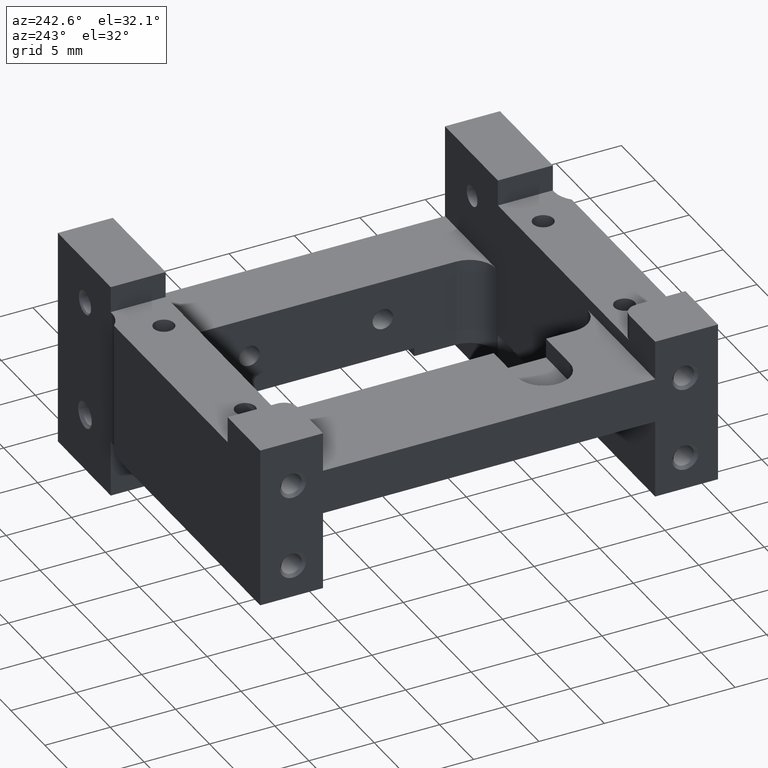
[diagram: clean part render]
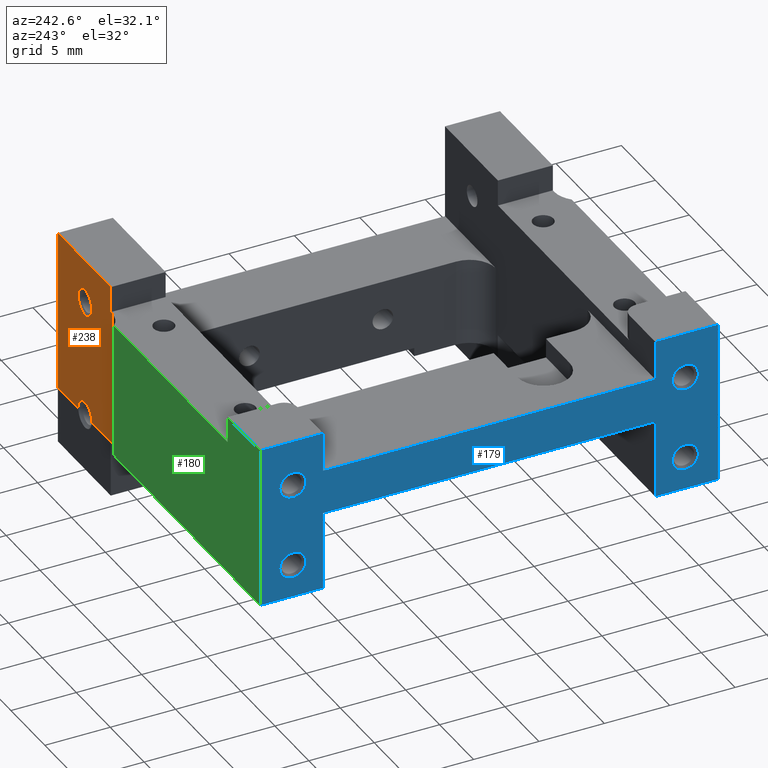
[diagram: same view with three faces highlighted in distinct colors, each labeled with its STEP entity id]
A machine part, auxiliary view with three faces highlighted in distinct colors.
Their STEP definitions:

[orange] entity #238 — the highlighted planar face has unit normal (0, 1, 0).
#150=FACE_BOUND('',#644,.F.);
#238=ADVANCED_FACE('',(#150,#432),#1756,.T.);
#432=FACE_OUTER_BOUND('',#645,.F.);
#644=EDGE_LOOP('',(#1180,#1181));
#645=EDGE_LOOP('',(#1182,#1183,#1184,#1185,#1186,#1187,#1188,#1189,#1190,
#1191,#1192));
#1180=ORIENTED_EDGE('',*,*,#2591,.F.);
#1181=ORIENTED_EDGE('',*,*,#2592,.F.);
#1182=ORIENTED_EDGE('',*,*,#2593,.T.);
#1183=ORIENTED_EDGE('',*,*,#2549,.T.);
#1184=ORIENTED_EDGE('',*,*,#2425,.F.);
#1185=ORIENTED_EDGE('',*,*,#2589,.F.);
#1186=ORIENTED_EDGE('',*,*,#2590,.F.);
#1187=ORIENTED_EDGE('',*,*,#2588,.F.);
#1188=ORIENTED_EDGE('',*,*,#2415,.F.);
#1189=ORIENTED_EDGE('',*,*,#2422,.F.);
#1190=ORIENTED_EDGE('',*,*,#2414,.F.);
#1191=ORIENTED_EDGE('',*,*,#2412,.T.);
#1192=ORIENTED_EDGE('',*,*,#2413,.T.);
#1756=PLANE('',#3576);
#1843=LINE('',#5117,#2113);
#1844=LINE('',#5118,#2114);
#1845=LINE('',#5119,#2115);
#1846=LINE('',#5120,#2116);
#1853=LINE('',#5127,#2123);
#1856=LINE('',#5130,#2126);
#1934=LINE('',#5254,#2204);
#1949=LINE('',#5298,#2219);
#2113=VECTOR('',#3808,1.99999976788385);
#2114=VECTOR('',#3809,0.200000556244207);
#2115=VECTOR('',#3810,7.79999944375578);
#2116=VECTOR('',#3811,3.00130552789108);
#2123=VECTOR('',#3818,12.4000000705615);
#2126=VECTOR('',#3821,2.80130580836718);
#2204=VECTOR('',#3991,0.199999738716436);
#2219=VECTOR('',#4064,10.4000002469794);
#2412=EDGE_CURVE('',#3194,#3193,#1843,.T.);
#2413=EDGE_CURVE('',#3193,#3192,#1844,.T.);
#2414=EDGE_CURVE('',#3194,#3191,#1845,.T.);
#2415=EDGE_CURVE('',#3190,#3276,#1846,.T.);
#2422=EDGE_CURVE('',#3191,#3190,#1853,.T.);
#2425=EDGE_CURVE('',#3275,#3198,#1856,.T.);
#2549=EDGE_CURVE('',#3196,#3198,#1934,.T.);
#2588=EDGE_CURVE('',#3276,#3094,#2898,.T.);
#2589=EDGE_CURVE('',#3093,#3275,#2899,.T.);
#2590=EDGE_CURVE('',#3094,#3093,#2900,.T.);
#2591=EDGE_CURVE('',#3092,#3091,#2901,.T.);
#2592=EDGE_CURVE('',#3091,#3092,#2902,.T.);
#2593=EDGE_CURVE('',#3192,#3196,#1949,.T.);
#2898=CIRCLE('',#3407,1.00000000000001);
#2899=CIRCLE('',#3408,1.00000000000001);
#2900=CIRCLE('',#3409,1.00000000000001);
#2901=CIRCLE('',#3410,1.);
#2902=CIRCLE('',#3411,1.);
#3091=VERTEX_POINT('',#4852);
#3092=VERTEX_POINT('',#4853);
#3093=VERTEX_POINT('',#4854);
#3094=VERTEX_POINT('',#4855);
#3190=VERTEX_POINT('',#4951);
#3191=VERTEX_POINT('',#4952);
#3192=VERTEX_POINT('',#4953);
#3193=VERTEX_POINT('',#4954);
#3194=VERTEX_POINT('',#4955);
#3196=VERTEX_POINT('',#4957);
#3198=VERTEX_POINT('',#4959);
#3275=VERTEX_POINT('',#5036);
#3276=VERTEX_POINT('',#5037);
#3407=AXIS2_PLACEMENT_3D('',#5293,#4054,#4055);
#3408=AXIS2_PLACEMENT_3D('',#5294,#4056,#4057);
#3409=AXIS2_PLACEMENT_3D('',#5295,#4058,#4059);
#3410=AXIS2_PLACEMENT_3D('',#5296,#4060,#4061);
#3411=AXIS2_PLACEMENT_3D('',#5297,#4062,#4063);
#3576=AXIS2_PLACEMENT_3D('',#5578,#4508,#4509);
#3808=DIRECTION('',(0.,0.,-1.));
#3809=DIRECTION('',(-1.,0.,0.));
#3810=DIRECTION('',(1.,0.,0.));
#3811=DIRECTION('',(-1.,0.,0.));
#3818=DIRECTION('',(0.,0.,-1.));
#3821=DIRECTION('',(-1.,0.,0.));
#3991=DIRECTION('',(1.,0.,0.));
#4054=DIRECTION('',(0.,-1.,0.));
#4055=DIRECTION('',(0.998694462512459,0.,-0.0510819982670082));
#4056=DIRECTION('',(0.,-1.,0.));
#4057=DIRECTION('',(-1.,0.,0.));
#4058=DIRECTION('',(0.,-1.,0.));
#4059=DIRECTION('',(1.,0.,0.));
#4060=DIRECTION('',(0.,-1.,0.));
#4061=DIRECTION('',(0.,0.,-1.));
#4062=DIRECTION('',(0.,-1.,0.));
#4063=DIRECTION('',(0.,0.,1.));
#4064=DIRECTION('',(0.,0.,-1.));
#4508=DIRECTION('',(0.,1.,0.));
#4509=DIRECTION('',(1.,0.,0.));
#4852=CARTESIAN_POINT('',(-5.99999999041638,-43.0999999999998,-95.348918016597));
#4853=CARTESIAN_POINT('',(-5.99999999041638,-43.0999999999998,-97.348918016597));
#4854=CARTESIAN_POINT('',(-6.99999999041638,-43.0999999999998,-105.348918016597));
#4855=CARTESIAN_POINT('',(-4.99999999041637,-43.0999999999998,-105.348918016597));
#4951=CARTESIAN_POINT('',(-2.00000000001263,-43.0999999999998,-105.400000014864));
#4952=CARTESIAN_POINT('',(-2.00000005881857,-43.0999999999998,-92.9999999814347));
#4953=CARTESIAN_POINT('',(-10.0000000588186,-43.0999999999998,-94.9999997678847));
#4954=CARTESIAN_POINT('',(-9.79999962018622,-43.0999999999998,-94.9999997678847));
#4955=CARTESIAN_POINT('',(-9.79999962018622,-43.0999999999998,-93.0000000000009));
#4957=CARTESIAN_POINT('',(-10.0000000000127,-43.0999999999998,-105.399999873198));
#4959=CARTESIAN_POINT('',(-9.80000026129623,-43.0999999999997,-105.399999873198));
#5036=CARTESIAN_POINT('',(-6.99869445292899,-43.0999999999997,-105.400000014864));
#5037=CARTESIAN_POINT('',(-5.00130552790378,-43.0999999999997,-105.400000014864));
#5117=CARTESIAN_POINT('',(-9.79999962018621,-43.0999999999998,-93.0000000000009));
#5118=CARTESIAN_POINT('',(-9.79999962018622,-43.0999999999998,-94.9999997678847));
#5119=CARTESIAN_POINT('',(-9.79999962018622,-43.0999999999998,-93.0000000000009));
#5120=CARTESIAN_POINT('',(-2.00000000001263,-43.0999999999998,-105.400000014864));
#5127=CARTESIAN_POINT('',(-2.00000000001263,-43.0999999999998,-92.9999999443025));
#5130=CARTESIAN_POINT('',(-6.99869445292906,-43.0999999999996,-105.400000014864));
#5254=CARTESIAN_POINT('',(-10.0000000000127,-43.0999999999998,-105.399999731532));
#5293=CARTESIAN_POINT('',(-5.99999999041638,-43.0999999999998,-105.348918016597));
#5294=CARTESIAN_POINT('',(-5.99999999041638,-43.0999999999998,-105.348918016597));
#5295=CARTESIAN_POINT('',(-5.99999999041638,-43.0999999999998,-105.348918016597));
#5296=CARTESIAN_POINT('',(-5.99999999041638,-43.0999999999998,-96.348918016597));
#5297=CARTESIAN_POINT('',(-5.99999999041638,-43.0999999999998,-96.348918016597));
#5298=CARTESIAN_POINT('',(-10.0000000000127,-43.0999999999998,-94.9999997678847));
#5578=CARTESIAN_POINT('',(-10.1670001764304,-43.0999999999998,-109.866999944302));

[blue] entity #179 — the highlighted planar face has unit normal (-1, 0, 0).
#138=FACE_BOUND('',#573,.F.);
#139=FACE_BOUND('',#574,.F.);
#140=FACE_BOUND('',#575,.F.);
#141=FACE_BOUND('',#576,.F.);
#179=ADVANCED_FACE('',(#138,#139,#140,#141,#373),#1721,.T.);
#373=FACE_OUTER_BOUND('',#577,.F.);
#573=EDGE_LOOP('',(#912,#913));
#574=EDGE_LOOP('',(#914,#915));
#575=EDGE_LOOP('',(#916,#917));
#576=EDGE_LOOP('',(#918,#919));
#577=EDGE_LOOP('',(#920,#921,#922,#923,#924,#925,#926,#927,#928,#929,#930,
#931,#932,#933));
#912=ORIENTED_EDGE('',*,*,#2359,.T.);
#913=ORIENTED_EDGE('',*,*,#2360,.T.);
#914=ORIENTED_EDGE('',*,*,#2357,.T.);
#915=ORIENTED_EDGE('',*,*,#2358,.T.);
#916=ORIENTED_EDGE('',*,*,#2355,.T.);
#917=ORIENTED_EDGE('',*,*,#2356,.T.);
#918=ORIENTED_EDGE('',*,*,#2353,.T.);
#919=ORIENTED_EDGE('',*,*,#2354,.T.);
#920=ORIENTED_EDGE('',*,*,#2447,.T.);
#921=ORIENTED_EDGE('',*,*,#2449,.T.);
#922=ORIENTED_EDGE('',*,*,#2467,.T.);
#923=ORIENTED_EDGE('',*,*,#2481,.T.);
#924=ORIENTED_EDGE('',*,*,#2375,.T.);
#925=ORIENTED_EDGE('',*,*,#2463,.T.);
#926=ORIENTED_EDGE('',*,*,#2376,.T.);
#927=ORIENTED_EDGE('',*,*,#2480,.T.);
#928=ORIENTED_EDGE('',*,*,#2402,.T.);
#929=ORIENTED_EDGE('',*,*,#2462,.T.);
#930=ORIENTED_EDGE('',*,*,#2403,.T.);
#931=ORIENTED_EDGE('',*,*,#2479,.T.);
#932=ORIENTED_EDGE('',*,*,#2474,.T.);
#933=ORIENTED_EDGE('',*,*,#2435,.T.);
#1721=PLANE('',#3517);
#1808=LINE('',#5080,#2078);
#1809=LINE('',#5081,#2079);
#1834=LINE('',#5107,#2104);
#1835=LINE('',#5108,#2105);
#1866=LINE('',#5140,#2136);
#1878=LINE('',#5152,#2148);
#1880=LINE('',#5154,#2150);
#1891=LINE('',#5167,#2161);
#1892=LINE('',#5168,#2162);
#1894=LINE('',#5172,#2164);
#1901=LINE('',#5179,#2171);
#1906=LINE('',#5184,#2176);
#1907=LINE('',#5185,#2177);
#1908=LINE('',#5186,#2178);
#2078=VECTOR('',#3769,0.599999999999994);
#2079=VECTOR('',#3770,5.9999997315319);
#2104=VECTOR('',#3797,5.9999997315319);
#2105=VECTOR('',#3798,0.600000000000009);
#2136=VECTOR('',#3831,2.99999999999997);
#2148=VECTOR('',#3843,25.3999999999995);
#2150=VECTOR('',#3845,3.);
#2161=VECTOR('',#3860,4.20000000000032);
#2162=VECTOR('',#3861,4.20000000000036);
#2164=VECTOR('',#3867,4.80000000000037);
#2171=VECTOR('',#3874,4.80000000000032);
#2176=VECTOR('',#3879,12.4000000148632);
#2177=VECTOR('',#3880,25.3999999999995);
#2178=VECTOR('',#3881,12.4000000148632);
#2353=EDGE_CURVE('',#3256,#3255,#2817,.T.);
#2354=EDGE_CURVE('',#3255,#3256,#2818,.T.);
#2355=EDGE_CURVE('',#3254,#3253,#2819,.T.);
#2356=EDGE_CURVE('',#3253,#3254,#2820,.T.);
#2357=EDGE_CURVE('',#3252,#3251,#2821,.T.);
#2358=EDGE_CURVE('',#3251,#3252,#2822,.T.);
#2359=EDGE_CURVE('',#3250,#3249,#2823,.T.);
#2360=EDGE_CURVE('',#3249,#3250,#2824,.T.);
#2375=EDGE_CURVE('',#3233,#3227,#1808,.T.);
#2376=EDGE_CURVE('',#3226,#3225,#1809,.T.);
#2402=EDGE_CURVE('',#3203,#3202,#1834,.T.);
#2403=EDGE_CURVE('',#3201,#3205,#1835,.T.);
#2435=EDGE_CURVE('',#3181,#3180,#1866,.T.);
#2447=EDGE_CURVE('',#3180,#3173,#1878,.T.);
#2449=EDGE_CURVE('',#3173,#3170,#1880,.T.);
#2462=EDGE_CURVE('',#3202,#3201,#1891,.T.);
#2463=EDGE_CURVE('',#3227,#3226,#1892,.T.);
#2467=EDGE_CURVE('',#3170,#3161,#1894,.T.);
#2474=EDGE_CURVE('',#3156,#3181,#1901,.T.);
#2479=EDGE_CURVE('',#3205,#3156,#1906,.T.);
#2480=EDGE_CURVE('',#3225,#3203,#1907,.T.);
#2481=EDGE_CURVE('',#3161,#3233,#1908,.T.);
#2817=CIRCLE('',#3326,1.00000000000001);
#2818=CIRCLE('',#3327,1.00000000000001);
#2819=CIRCLE('',#3328,1.);
#2820=CIRCLE('',#3329,1.);
#2821=CIRCLE('',#3330,1.);
#2822=CIRCLE('',#3331,1.);
#2823=CIRCLE('',#3332,1.00000000000001);
#2824=CIRCLE('',#3333,1.00000000000001);
#3156=VERTEX_POINT('',#4917);
#3161=VERTEX_POINT('',#4922);
#3170=VERTEX_POINT('',#4931);
#3173=VERTEX_POINT('',#4934);
#3180=VERTEX_POINT('',#4941);
#3181=VERTEX_POINT('',#4942);
#3201=VERTEX_POINT('',#4962);
#3202=VERTEX_POINT('',#4963);
#3203=VERTEX_POINT('',#4964);
#3205=VERTEX_POINT('',#4966);
#3225=VERTEX_POINT('',#4986);
#3226=VERTEX_POINT('',#4987);
#3227=VERTEX_POINT('',#4988);
#3233=VERTEX_POINT('',#4994);
#3249=VERTEX_POINT('',#5010);
#3250=VERTEX_POINT('',#5011);
#3251=VERTEX_POINT('',#5012);
#3252=VERTEX_POINT('',#5013);
#3253=VERTEX_POINT('',#5014);
#3254=VERTEX_POINT('',#5015);
#3255=VERTEX_POINT('',#5016);
#3256=VERTEX_POINT('',#5017);
#3326=AXIS2_PLACEMENT_3D('',#5058,#3738,#3739);
#3327=AXIS2_PLACEMENT_3D('',#5059,#3740,#3741);
#3328=AXIS2_PLACEMENT_3D('',#5060,#3742,#3743);
#3329=AXIS2_PLACEMENT_3D('',#5061,#3744,#3745);
#3330=AXIS2_PLACEMENT_3D('',#5062,#3746,#3747);
#3331=AXIS2_PLACEMENT_3D('',#5063,#3748,#3749);
#3332=AXIS2_PLACEMENT_3D('',#5064,#3750,#3751);
#3333=AXIS2_PLACEMENT_3D('',#5065,#3752,#3753);
#3517=AXIS2_PLACEMENT_3D('',#5519,#4390,#4391);
#3738=DIRECTION('',(-1.,0.,0.));
#3739=DIRECTION('',(0.,1.,0.));
#3740=DIRECTION('',(-1.,0.,0.));
#3741=DIRECTION('',(0.,-1.,0.));
#3742=DIRECTION('',(-1.,0.,0.));
#3743=DIRECTION('',(0.,1.,0.));
#3744=DIRECTION('',(-1.,0.,0.));
#3745=DIRECTION('',(0.,-1.,0.));
#3746=DIRECTION('',(-1.,0.,0.));
#3747=DIRECTION('',(0.,1.,0.));
#3748=DIRECTION('',(-1.,0.,0.));
#3749=DIRECTION('',(0.,-1.,0.));
#3750=DIRECTION('',(-1.,0.,0.));
#3751=DIRECTION('',(0.,1.,0.));
#3752=DIRECTION('',(-1.,0.,0.));
#3753=DIRECTION('',(0.,-1.,0.));
#3769=DIRECTION('',(0.,1.,0.));
#3770=DIRECTION('',(0.,0.,1.));
#3797=DIRECTION('',(0.,0.,-1.));
#3798=DIRECTION('',(0.,1.,0.));
#3831=DIRECTION('',(0.,0.,-1.));
#3843=DIRECTION('',(0.,-1.,0.));
#3845=DIRECTION('',(0.,0.,1.));
#3860=DIRECTION('',(0.,1.,0.));
#3861=DIRECTION('',(0.,1.,0.));
#3867=DIRECTION('',(0.,-1.,0.));
#3874=DIRECTION('',(0.,-1.,0.));
#3879=DIRECTION('',(0.,0.,1.));
#3880=DIRECTION('',(0.,1.,0.));
#3881=DIRECTION('',(0.,0.,-1.));
#4390=DIRECTION('',(-1.,0.,0.));
#4391=DIRECTION('',(0.,0.,-1.));
#4917=CARTESIAN_POINT('',(-33.0000000000126,-42.4999999999996,-93.0000000000009));
#4922=CARTESIAN_POINT('',(-33.0000000000126,-77.4999999999998,-93.0000000000009));
#4931=CARTESIAN_POINT('',(-33.0000000000126,-72.6999999999995,-93.0000000000009));
#4934=CARTESIAN_POINT('',(-33.0000000000126,-72.6999999999995,-96.0000000000009));
#4941=CARTESIAN_POINT('',(-33.0000000000126,-47.3,-96.0000000000008));
#4942=CARTESIAN_POINT('',(-33.0000000000126,-47.3,-93.0000000000009));
#4962=CARTESIAN_POINT('',(-33.0000000000126,-43.0999999999996,-105.399999825976));
#4963=CARTESIAN_POINT('',(-33.0000000000126,-47.3,-105.399999731532));
#4964=CARTESIAN_POINT('',(-33.0000000000126,-47.3,-99.4000000000003));
#4966=CARTESIAN_POINT('',(-33.0000000000126,-42.4999999999996,-105.400000014864));
#4986=CARTESIAN_POINT('',(-33.0000000000126,-72.6999999999995,-99.4000000000003));
#4987=CARTESIAN_POINT('',(-33.0000000000126,-72.6999999999995,-105.399999731532));
#4988=CARTESIAN_POINT('',(-33.0000000000126,-76.8999999999998,-105.399999825976));
#4994=CARTESIAN_POINT('',(-33.0000000000126,-77.4999999999998,-105.400000014864));
#5010=CARTESIAN_POINT('',(-33.0000000000126,-75.9999999999997,-102.900000000001));
#5011=CARTESIAN_POINT('',(-33.0000000000126,-73.9999999999997,-102.900000000001));
#5012=CARTESIAN_POINT('',(-33.0000000000126,-45.9999999999997,-102.900000000001));
#5013=CARTESIAN_POINT('',(-33.0000000000126,-43.9999999999997,-102.900000000001));
#5014=CARTESIAN_POINT('',(-33.0000000000126,-45.9999999999997,-96.5000000000009));
#5015=CARTESIAN_POINT('',(-33.0000000000126,-43.9999999999997,-96.5000000000009));
#5016=CARTESIAN_POINT('',(-33.0000000000126,-75.9999999999997,-96.5000000000009));
#5017=CARTESIAN_POINT('',(-33.0000000000126,-73.9999999999997,-96.5000000000009));
#5058=CARTESIAN_POINT('',(-33.0000000000126,-74.9999999999997,-96.5000000000009));
#5059=CARTESIAN_POINT('',(-33.0000000000126,-74.9999999999997,-96.5000000000009));
#5060=CARTESIAN_POINT('',(-33.0000000000126,-44.9999999999997,-96.5000000000009));
#5061=CARTESIAN_POINT('',(-33.0000000000126,-44.9999999999997,-96.5000000000009));
#5062=CARTESIAN_POINT('',(-33.0000000000126,-44.9999999999997,-102.900000000001));
#5063=CARTESIAN_POINT('',(-33.0000000000126,-44.9999999999997,-102.900000000001));
#5064=CARTESIAN_POINT('',(-33.0000000000126,-74.9999999999997,-102.900000000001));
#5065=CARTESIAN_POINT('',(-33.0000000000126,-74.9999999999997,-102.900000000001));
#5080=CARTESIAN_POINT('',(-33.0000000000126,-77.4999999999998,-105.400000014864));
#5081=CARTESIAN_POINT('',(-33.0000000000126,-72.6999999999995,-105.399999731532));
#5107=CARTESIAN_POINT('',(-33.0000000000126,-47.3,-99.4000000000003));
#5108=CARTESIAN_POINT('',(-33.0000000000126,-43.0999999999996,-105.400000014864));
#5140=CARTESIAN_POINT('',(-33.0000000000126,-47.3,-93.0000000000009));
#5152=CARTESIAN_POINT('',(-33.0000000000126,-47.3,-96.0000000000008));
#5154=CARTESIAN_POINT('',(-33.0000000000126,-72.6999999999995,-96.0000000000009));
#5167=CARTESIAN_POINT('',(-33.0000000000126,-47.3,-105.399999731532));
#5168=CARTESIAN_POINT('',(-33.0000000000127,-76.8999999999998,-105.399999731532));
#5172=CARTESIAN_POINT('',(-33.0000000000126,-72.6999999999995,-93.0000000000009));
#5179=CARTESIAN_POINT('',(-33.0000000000126,-42.4999999999996,-93.0000000000009));
#5184=CARTESIAN_POINT('',(-33.0000000000126,-42.4999999999996,-105.400000014864));
#5185=CARTESIAN_POINT('',(-33.0000000000126,-72.6999999999995,-99.4000000000003));
#5186=CARTESIAN_POINT('',(-33.0000000000126,-77.4999999999998,-93.0000000000009));
#5519=CARTESIAN_POINT('',(-33.0000000000126,-42.1499999999996,-92.6500000000009));

[green] entity #180 — the highlighted planar face has unit normal (0, 1, 0).
#180=ADVANCED_FACE('',(#374),#1722,.T.);
#374=FACE_OUTER_BOUND('',#578,.F.);
#578=EDGE_LOOP('',(#934,#935,#936,#937,#938,#939));
#934=ORIENTED_EDGE('',*,*,#2472,.T.);
#935=ORIENTED_EDGE('',*,*,#2483,.T.);
#936=ORIENTED_EDGE('',*,*,#2477,.F.);
#937=ORIENTED_EDGE('',*,*,#2479,.F.);
#938=ORIENTED_EDGE('',*,*,#2401,.T.);
#939=ORIENTED_EDGE('',*,*,#2459,.F.);
#1722=PLANE('',#3518);
#1833=LINE('',#5106,#2103);
#1888=LINE('',#5164,#2158);
#1899=LINE('',#5177,#2169);
#1904=LINE('',#5182,#2174);
#1906=LINE('',#5184,#2176);
#1910=LINE('',#5188,#2180);
#2103=VECTOR('',#3796,21.5717143142912);
#2158=VECTOR('',#3857,10.4000002469793);
#2169=VECTOR('',#3872,16.7717139344648);
#2174=VECTOR('',#3877,4.80000037982642);
#2176=VECTOR('',#3879,12.4000000148632);
#2180=VECTOR('',#3883,1.99999976788388);
#2401=EDGE_CURVE('',#3205,#3204,#1833,.T.);
#2459=EDGE_CURVE('',#3165,#3204,#1888,.T.);
#2472=EDGE_CURVE('',#3165,#3158,#1899,.T.);
#2477=EDGE_CURVE('',#3156,#3155,#1904,.T.);
#2479=EDGE_CURVE('',#3205,#3156,#1906,.T.);
#2483=EDGE_CURVE('',#3158,#3155,#1910,.T.);
#3155=VERTEX_POINT('',#4916);
#3156=VERTEX_POINT('',#4917);
#3158=VERTEX_POINT('',#4919);
#3165=VERTEX_POINT('',#4926);
#3204=VERTEX_POINT('',#4965);
#3205=VERTEX_POINT('',#4966);
#3518=AXIS2_PLACEMENT_3D('',#5520,#4392,#4393);
#3796=DIRECTION('',(1.,0.,0.));
#3857=DIRECTION('',(0.,0.,-1.));
#3872=DIRECTION('',(-1.,0.,0.));
#3877=DIRECTION('',(1.,0.,0.));
#3879=DIRECTION('',(0.,0.,1.));
#3883=DIRECTION('',(0.,0.,1.));
#4392=DIRECTION('',(0.,1.,0.));
#4393=DIRECTION('',(0.,0.,1.));
#4916=CARTESIAN_POINT('',(-28.1999996201862,-42.4999999999996,-93.0000000000009));
#4917=CARTESIAN_POINT('',(-33.0000000000126,-42.4999999999996,-93.0000000000009));
#4919=CARTESIAN_POINT('',(-28.1999996201862,-42.4999999999997,-94.9999997678847));
#4926=CARTESIAN_POINT('',(-11.4282856857214,-42.4999999999997,-94.9999997678847));
#4965=CARTESIAN_POINT('',(-11.4282856857215,-42.4999999999996,-105.400000014864));
#4966=CARTESIAN_POINT('',(-33.0000000000126,-42.4999999999996,-105.400000014864));
#5106=CARTESIAN_POINT('',(-33.0000000000126,-42.4999999999996,-105.400000014864));
#5164=CARTESIAN_POINT('',(-11.4282856857214,-42.4999999999997,-94.9999997678847));
#5177=CARTESIAN_POINT('',(-11.4282856857214,-42.4999999999997,-94.9999997678847));
#5182=CARTESIAN_POINT('',(-33.0000000000126,-42.4999999999996,-93.0000000000009));
#5184=CARTESIAN_POINT('',(-33.0000000000126,-42.4999999999996,-105.400000014864));
#5188=CARTESIAN_POINT('',(-28.1999996201862,-42.4999999999996,-94.9999997678847));
#5520=CARTESIAN_POINT('',(-33.3100000000126,-42.4999999999996,-105.710000014864));